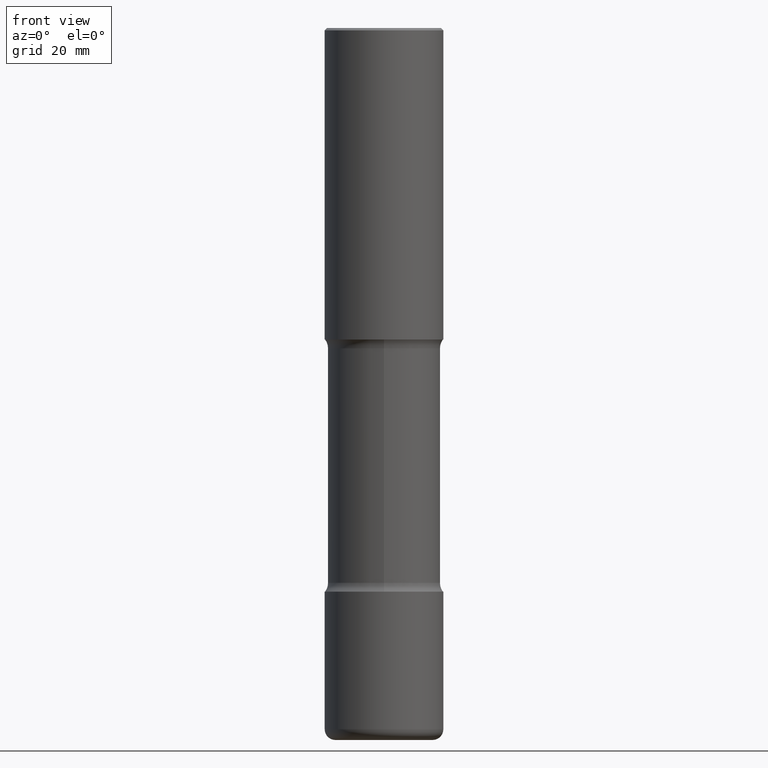
[diagram: clean part render]
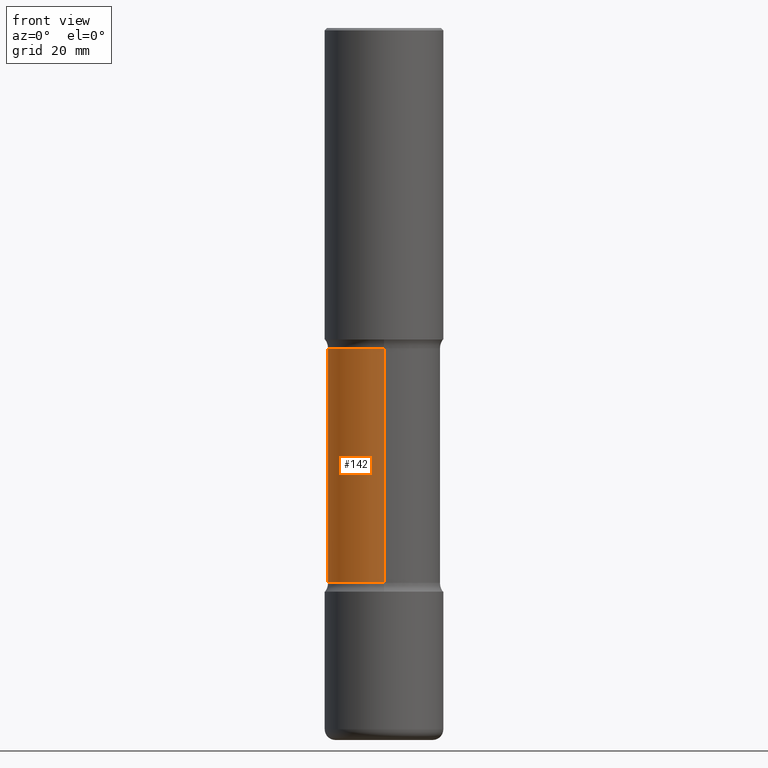
[diagram: same view with one face highlighted and labeled with its STEP entity id]
A machine part, front view. The second image highlights one B-rep face of the part: STEP entity #142.
In plain terms, the highlighted cylindrical surface (partial cylindrical patch) has radius 12.065 mm, axis along (0, -0, -1).
Its self-contained STEP definition (entity closure, byte-faithful):
#24 = VECTOR ( 'NONE', #155, 39.37007874015748143 ) ;
#42 = EDGE_CURVE ( 'NONE', #82, #113, #189, .T. ) ;
#43 = DIRECTION ( 'NONE',  ( 6.982962677686265133E-15, 1.000000000000000000, -3.450755360418016739E-15 ) ) ;
#82 = VERTEX_POINT ( 'NONE', #493 ) ;
#95 = EDGE_LOOP ( 'NONE', ( #417, #175, #404, #291 ) ) ;
#98 = AXIS2_PLACEMENT_3D ( 'NONE', #289, #125, #43 ) ;
#103 = AXIS2_PLACEMENT_3D ( 'NONE', #431, #255, #466 ) ;
#113 = VERTEX_POINT ( 'NONE', #369 ) ;
#124 = DIRECTION ( 'NONE',  ( 6.982962677686265133E-15, 1.000000000000000000, -2.300503573612011422E-15 ) ) ;
#125 = DIRECTION ( 'NONE',  ( 2.523594115079346016E-29, -3.379601449890201278E-15, -1.000000000000000000 ) ) ;
#127 = AXIS2_PLACEMENT_3D ( 'NONE', #511, #240, #124 ) ;
#142 = ADVANCED_FACE ( 'NONE', ( #507 ), #204, .T. ) ;
#155 = DIRECTION ( 'NONE',  ( 2.523594115079346297E-29, -3.379601449890201278E-15, -1.000000000000000000 ) ) ;
#168 = DIRECTION ( 'NONE',  ( 2.523594115079346297E-29, -3.379601449890201278E-15, -1.000000000000000000 ) ) ;
#175 = ORIENTED_EDGE ( 'NONE', *, *, #467, .T. ) ;
#189 = LINE ( 'NONE', #537, #24 ) ;
#201 = CIRCLE ( 'NONE', #103, 0.4749999999999999223 ) ;
#204 = CYLINDRICAL_SURFACE ( 'NONE', #127, 0.4749999999999999778 ) ;
#234 = VERTEX_POINT ( 'NONE', #520 ) ;
#240 = DIRECTION ( 'NONE',  ( 2.523594115079346016E-29, -3.379601449890201278E-15, -1.000000000000000000 ) ) ;
#255 = DIRECTION ( 'NONE',  ( 2.523594115079346016E-29, -3.379601449890201278E-15, -1.000000000000000000 ) ) ;
#275 = CIRCLE ( 'NONE', #98, 0.4749999999999999778 ) ;
#289 = CARTESIAN_POINT ( 'NONE',  ( 6.442608893466743677E-29, -9.656353387230035032E-15, -2.700000000000001954 ) ) ;
#291 = ORIENTED_EDGE ( 'NONE', *, *, #452, .F. ) ;
#301 = VERTEX_POINT ( 'NONE', #514 ) ;
#369 = CARTESIAN_POINT ( 'NONE',  ( 3.316907271901089495E-15, 0.4749999999999836020, -4.675000000000001599 ) ) ;
#404 = ORIENTED_EDGE ( 'NONE', *, *, #42, .T. ) ;
#417 = ORIENTED_EDGE ( 'NONE', *, *, #459, .F. ) ;
#431 = CARTESIAN_POINT ( 'NONE',  ( 1.142670727074844742E-28, -1.633106625076317916E-14, -4.674999999999999822 ) ) ;
#445 = CARTESIAN_POINT ( 'NONE',  ( -3.258736548941329344E-15, -0.4750000000000207945, -5.999999999999998224 ) ) ;
#452 = EDGE_CURVE ( 'NONE', #234, #113, #201, .T. ) ;
#459 = EDGE_CURVE ( 'NONE', #301, #234, #479, .T. ) ;
#466 = DIRECTION ( 'NONE',  ( 6.982962677686265133E-15, 1.000000000000000000, -3.450755360418017133E-15 ) ) ;
#467 = EDGE_CURVE ( 'NONE', #301, #82, #275, .T. ) ;
#479 = LINE ( 'NONE', #445, #517 ) ;
#493 = CARTESIAN_POINT ( 'NONE',  ( 3.316907271901040585E-15, 0.4749999999999903744, -2.700000000000003286 ) ) ;
#507 = FACE_OUTER_BOUND ( 'NONE', #95, .T. ) ;
#511 = CARTESIAN_POINT ( 'NONE',  ( 1.477046947322857785E-28, -2.080903817186768789E-14, -5.999999999999999112 ) ) ;
#514 = CARTESIAN_POINT ( 'NONE',  ( -3.344492773913559396E-15, -0.4750000000000096367, -2.700000000000000178 ) ) ;
#517 = VECTOR ( 'NONE', #168, 39.37007874015748143 ) ;
#520 = CARTESIAN_POINT ( 'NONE',  ( -3.344492773913506542E-15, -0.4750000000000162426, -4.674999999999998934 ) ) ;
#537 = CARTESIAN_POINT ( 'NONE',  ( 3.316907271901123416E-15, 0.4749999999999791611, -6.000000000000000888 ) ) ;